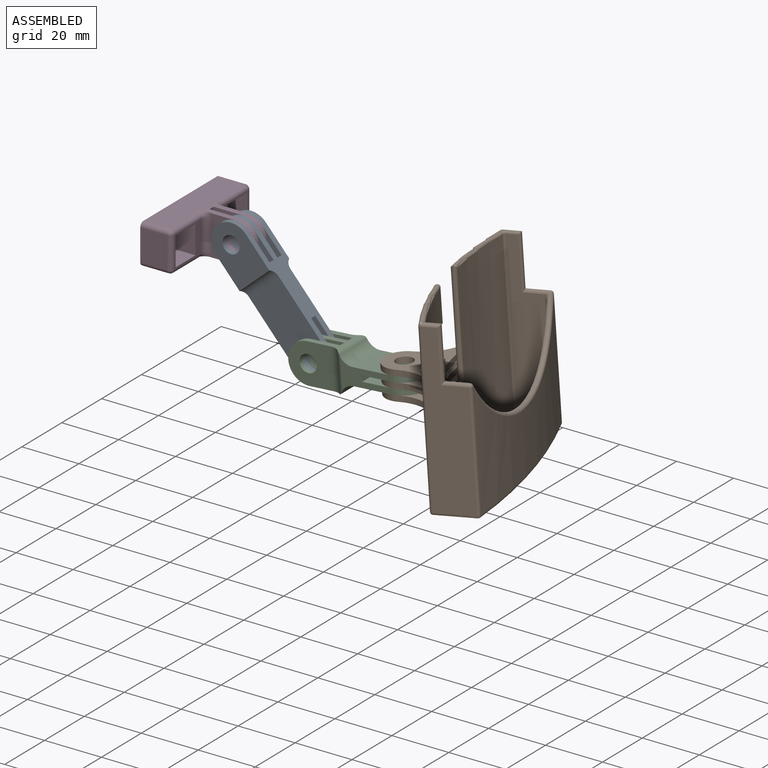
[diagram: assembled view]
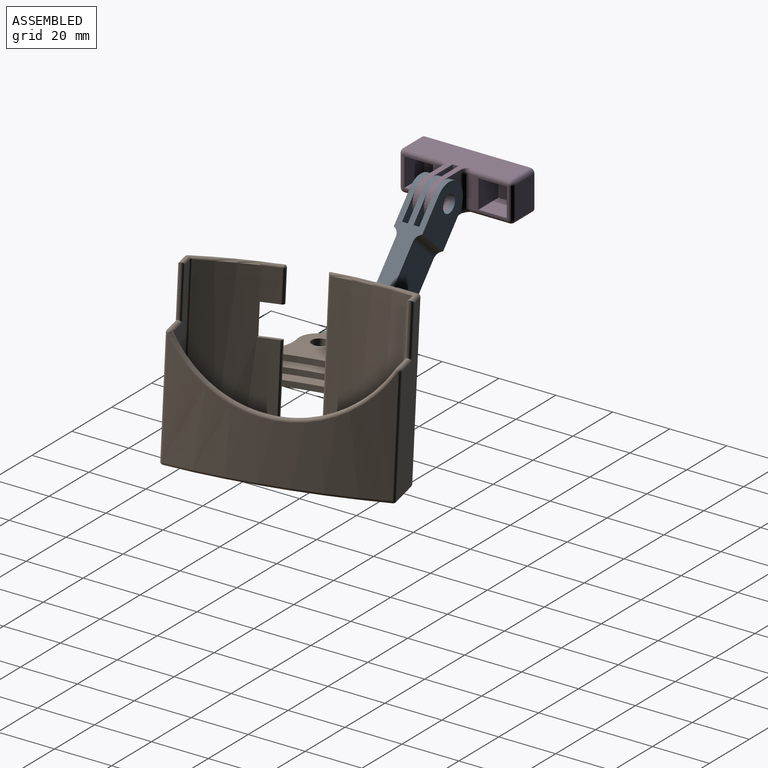
[diagram: assembled view, second angle]
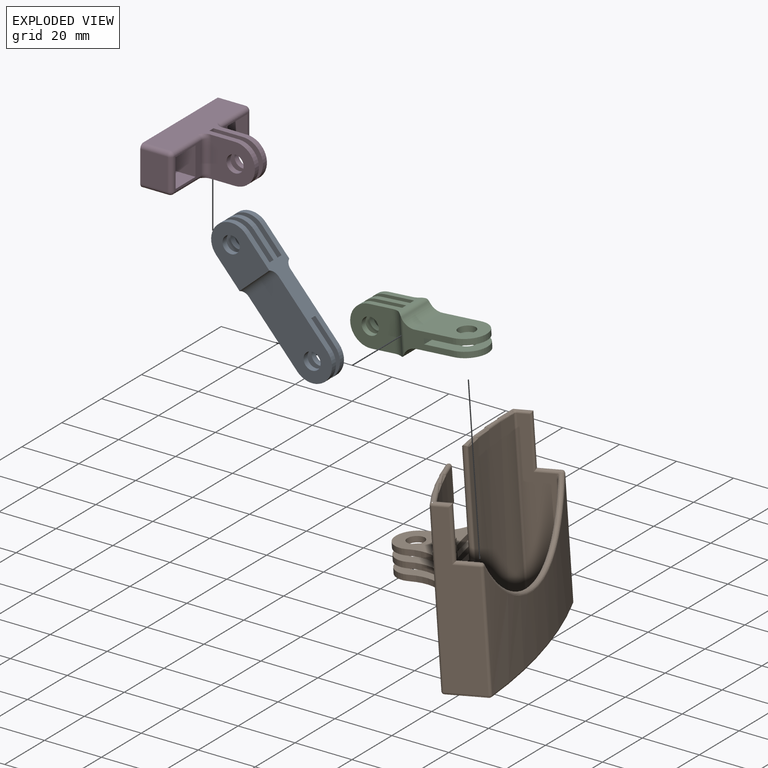
[diagram: exploded view]
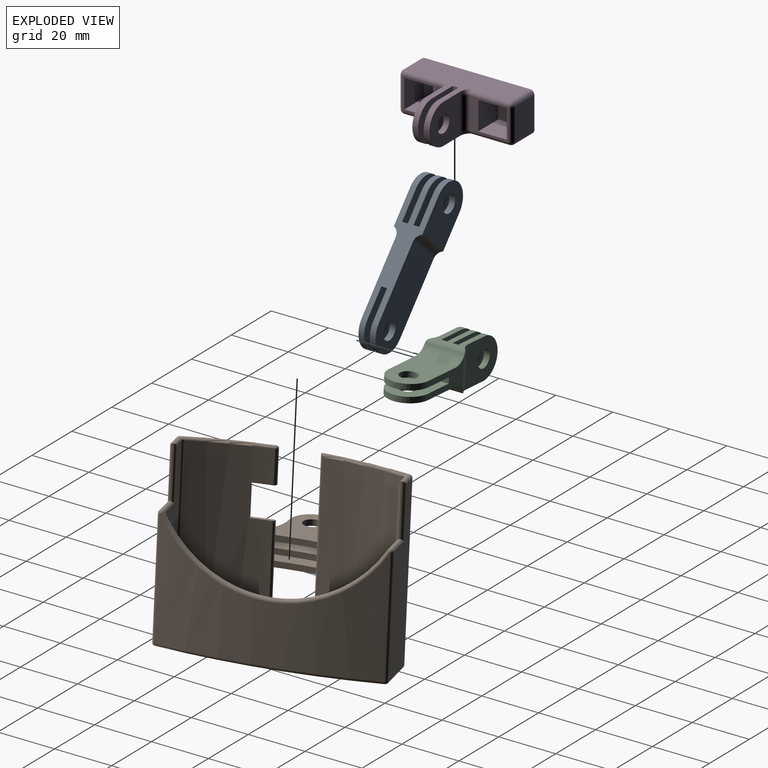
[diagram: exploded view, second angle]
ASSEMBLY  parts=4 mates=3
PART A: 27 faces, bbox 14x54.8x10 mm
  f0: plane 40.78x10mm, normal (-1,0,0), area 235mm2, adj f1,f4,f5,f6,f8,f9,f10,f11
  f1: cylinder r=7mm len=14mm, axis (0,0,-1), area 44mm2, adj f0,f2,f4,f5
  f2: plane 40.78x10mm, normal (1,0,0), area 235mm2, adj f1,f4,f5,f6,f8,f9,f10,f11
  f3: cylinder r=3mm len=6mm, axis (0,0,-1), area 37.7mm2, adj f4,f5
  f4: plane 17.39x14mm, normal (0,0,1), area 194.1mm2, adj f0,f1,f2,f3,f10
  f5: plane 32.56x14mm, normal (0,0,-1), area 406.6mm2, adj f0,f1,f2,f3,f26
  f6: cylinder r=7mm len=14mm, axis (0,0,-1), area 44mm2, adj f0,f2,f8,f9
  f7: cylinder r=3mm len=6mm, axis (0,0,-1), area 37.7mm2, adj f8,f9
  f8: plane 32.56x14mm, normal (0,0,1), area 406.6mm2, adj f0,f2,f6,f7,f25
  f9: plane 17.39x14mm, normal (0,0,-1), area 194.1mm2, adj f0,f2,f6,f7,f10
  f10: plane 14x2mm, normal (0,-1,0), area 28mm2, adj f0,f2,f4,f9
  f11: cylinder r=7mm len=14mm, axis (0,0,-1), area 44mm2, adj f0,f2,f13,f14
  f12: cylinder r=3mm len=6mm, axis (0,0,-1), area 37.7mm2, adj f13,f14
  f13: plane 17.39x14mm, normal (0,0,1), area 194.1mm2, adj f0,f2,f11,f12,f15
  f14: plane 17.39x14mm, normal (0,0,-1), area 194.1mm2, adj f0,f2,f11,f12,f24
  f15: plane 14x2mm, normal (0,1,0), area 28mm2, adj f0,f2,f13,f19
  f16: cylinder r=7mm len=14mm, axis (0,0,-1), area 44mm2, adj f0,f2,f18,f19
  f17: cylinder r=3mm len=6mm, axis (0,0,-1), area 37.7mm2, adj f18,f19
  f18: plane 19.39x14mm, normal (0,0,1), area 222.1mm2, adj f0,f2,f16,f17,f25
  f19: plane 17.39x14mm, normal (0,0,-1), area 194.1mm2, adj f0,f2,f15,f16,f17
  f20: cylinder r=7mm len=14mm, axis (0,0,-1), area 44mm2, adj f0,f2,f22,f23
  f21: cylinder r=3mm len=6mm, axis (0,0,-1), area 37.7mm2, adj f22,f23
  f22: plane 17.39x14mm, normal (0,0,1), area 194.1mm2, adj f0,f2,f20,f21,f24
  f23: plane 19.39x14mm, normal (0,0,-1), area 222.1mm2, adj f0,f2,f20,f21,f26
  f24: plane 14x2mm, normal (0,1,0), area 28mm2, adj f0,f2,f14,f22
  f25: cylinder r=3mm len=14mm, axis (1,0,0), area 51.7mm2, adj f0,f2,f8,f18
  f26: cylinder r=3mm len=14mm, axis (1,0,0), area 51.7mm2, adj f0,f2,f5,f23
PART B: 107 faces, bbox 76.4x47.2x60 mm
  f0: cylinder r=120.1mm len=70.59mm, axis (0,0,-1), area 3090.1mm2, adj f1,f3,f5,f79,f82,f83,f84,f87
  f1: cylinder r=14.77mm len=14.57mm, axis (0,0,-1), area 41.6mm2, adj f0,f2,f84,f88
  f2: cylinder r=7mm len=14mm, axis (0,0,-1), area 44mm2, adj f1,f84,f87,f88
  f3: cylinder r=14.77mm len=14.57mm, axis (0,0,-1), area 41.6mm2, adj f0,f4,f79,f83
  f4: cylinder r=7mm len=14mm, axis (0,0,-1), area 44mm2, adj f3,f79,f82,f83
  f5: bspline ~15.13x9.18mm, area 34.6mm2, adj f0,f6,f91,f102
  f6: cylinder r=6.5mm len=13mm, axis (0,1,0), area 5mm2, adj f5,f7,f77,f78
  f7: plane 26.51x0.24mm, normal (-1,0,0), area 6.2mm2, adj f6,f8,f76,f91
  f8: cylinder r=0.75mm len=26.51mm, axis (0,0,-1), area 30mm2, adj f7,f9,f76,f77
  f9: cylinder r=118.1mm len=66.93mm, axis (0,0,-1), area 2970.6mm2, adj f8,f10,f69,f70,f71,f72,f73,f74
  f10: torus R=117.35mm, axis (0,0,1), area 79.8mm2, adj f9,f11,f67,f68
  f11: sphere r=0.75mm, area 0.7mm2, adj f10,f12,f69
  f12: cylinder r=0.75mm len=10.81mm, axis (0,1,0), area 12.7mm2, adj f11,f13,f66,f68
  f13: sphere r=0.75mm, area 1.5mm2, adj f12,f14,f65
  f14: torus R=193.42mm, axis (0,0,1), area 78.9mm2, adj f13,f15,f64,f68
  f15: sphere r=0.75mm, area 0.8mm2, adj f14,f16,f63
  f16: cylinder r=0.75mm len=10.81mm, axis (0,-1,0), area 12.7mm2, adj f15,f17,f67,f68
  f17: plane 56.5x11.37mm, normal (-1,0,0), area 487.1mm2, adj f16,f18,f59,f61,f62,f63,f75
  f18: cylinder r=0.75mm len=18.81mm, axis (0,0,-1), area 21.2mm2, adj f17,f19,f57,f58,f59,f62
  f19: plane 17.91x0.25mm, normal (0,1,0), area 4.5mm2, adj f18,f20,f54,f58
  f20: cylinder r=1mm len=18.88mm, axis (0,0,1), area 28.1mm2, adj f19,f21,f52,f58
  f21: plane 58x13.58mm, normal (1,0,0), area 634mm2, adj f20,f22,f51,f52,f58,f98
  f22: cylinder r=1mm len=13.58mm, axis (0,1,0), area 21.3mm2, adj f21,f23,f48,f49,f50
  f23: sphere r=1mm, area 0.2mm2, adj f22,f24
  f24: torus R=195.17mm, axis (0,0,1), area 110.9mm2, adj f23,f25,f47,f48,f50
  f25: cylinder r=196.17mm len=70.36mm, axis (0,0,-1), area 1831.2mm2, adj f24,f26,f46,f51
  f26: bspline ~73.16x24.38mm, area 136.5mm2, adj f25,f27,f45,f57
  f27: sphere r=1mm, area 2.4mm2, adj f26,f28,f46
  f28: cylinder r=1mm len=8.59mm, axis (0,-1,0), area 20.5mm2, adj f27,f29,f40,f41,f42,f57
  f29: cylinder r=0.75mm len=18.81mm, axis (0,0,1), area 21.2mm2, adj f28,f30,f35,f40,f57,f66
  f30: cylinder r=0.75mm len=8.13mm, axis (0,-1,0), area 3mm2, adj f29,f31,f57,f66
  f31: bspline ~0.96x0.95mm, area 0.1mm2, adj f30,f32,f34
  f32: bspline ~72.03x23.64mm, area 91.8mm2, adj f31,f33,f34,f57,f61,f64
  f33: bspline ~0.96x0.95mm, area 0.1mm2, adj f32,f61,f62
  f34: bspline ~2.66x1.01mm, area 1.5mm2, adj f31,f32,f65,f66
  f35: cylinder r=0.75mm len=5.81mm, axis (0,1,0), area 5.7mm2, adj f29,f36,f37,f66
  f36: bspline ~1.29x1.12mm, area 0.5mm2, adj f35,f69,f70
  f37: plane 28.46x11.07mm, normal (0,0,1), area 8.7mm2, adj f35,f38,f40,f70,f78,f101,f102
  f38: cylinder r=1mm len=5.99mm, axis (0,1,0), area 8.6mm2, adj f37,f39,f41,f42
  f39: sphere r=1mm, area 1.3mm2, adj f38,f100,f101
  f40: plane 17.91x0.25mm, normal (0,1,0), area 4.5mm2, adj f28,f29,f37,f41
  f41: cylinder r=1mm len=18.88mm, axis (0,0,-1), area 28.1mm2, adj f28,f38,f40,f42
  f42: plane 58x13.58mm, normal (-1,0,0), area 634mm2, adj f28,f38,f41,f43,f46,f100
  f43: cylinder r=1mm len=13.58mm, axis (0,-1,0), area 21.3mm2, adj f42,f44,f47,f48
  f44: sphere r=1mm, area 0.7mm2, adj f43,f99,f100
  f45: sphere r=1mm, area 2.4mm2, adj f26,f51,f58
  f46: cylinder r=1mm len=40.12mm, axis (0,0,-1), area 55.8mm2, adj f25,f27,f42,f47
  f47: sphere r=1mm, area 1.5mm2, adj f24,f43,f46
  f48: plane 70x22mm, normal (0,0,-1), area 1344.8mm2, adj f22,f24,f43,f99
  f49: sphere r=1mm, area 1.3mm2, adj f22,f98,f99
  f50: sphere r=1mm, area 0.5mm2, adj f22,f24,f51
  f51: cylinder r=1mm len=40.12mm, axis (0,0,-1), area 55.8mm2, adj f21,f25,f45,f50
  f52: cylinder r=1mm len=5.99mm, axis (0,-1,0), area 8.6mm2, adj f20,f21,f53,f54
  f53: sphere r=1mm, area 0.7mm2, adj f52,f97,f98
  f54: plane 27.79x11.03mm, normal (0,0,1), area 8.5mm2, adj f19,f52,f55,f59,f74,f97
  f55: torus R=0.25mm, axis (0,0,1), area 1.3mm2, adj f54,f56,f74,f96
  f56: bspline ~1.24x1.07mm, area 0.9mm2, adj f55,f96,f97
  f57: cylinder r=39.5mm len=68.27mm, axis (0,-1,0), area 20.5mm2, adj f18,f26,f28,f29,f30,f32,f58,f62
  f58: cylinder r=1mm len=8.59mm, axis (0,-1,0), area 20.5mm2, adj f18,f19,f20,f21,f45,f57
  f59: cylinder r=0.75mm len=5.81mm, axis (0,-1,0), area 5.7mm2, adj f17,f18,f54,f60
  f60: bspline ~1.29x1.12mm, area 0.5mm2, adj f59,f74,f75
  f61: bspline ~2.66x1.01mm, area 1.5mm2, adj f17,f32,f33,f63
  f62: cylinder r=0.75mm len=8.13mm, axis (0,-1,0), area 3mm2, adj f17,f18,f33,f57
  f63: cylinder r=0.75mm len=36.45mm, axis (0,0,-1), area 38.2mm2, adj f15,f17,f61,f64
  f64: cylinder r=194.17mm len=66.76mm, axis (0,0,-1), area 1599.8mm2, adj f14,f32,f63,f65
  f65: cylinder r=0.75mm len=36.45mm, axis (0,0,-1), area 38.2mm2, adj f13,f34,f64,f66
  f66: plane 56.5x11.37mm, normal (1,0,0), area 487.1mm2, adj f12,f29,f30,f34,f35,f65,f69
  f67: sphere r=0.75mm, area 0.7mm2, adj f10,f16,f75
  f68: plane 66.5x18.5mm, normal (0,0,1), area 1060.9mm2, adj f10,f12,f14,f16
  f69: cylinder r=0.75mm len=56.5mm, axis (0,0,-1), area 54.4mm2, adj f9,f11,f36,f66
  f70: torus R=118.85mm, axis (0,0,1), area 32.5mm2, adj f9,f36,f37,f71,f78
  f71: cylinder r=0.75mm len=49.5mm, axis (0,0,-1), area 55.6mm2, adj f9,f70,f77,f78
  f72: plane 11x0.88mm, normal (-1,0,0), area 9.7mm2, adj f9,f73,f76,f94
  f73: plane 7.54x1.66mm, normal (0,0,-1), area 7.4mm2, adj f9,f72,f94,f95,f96
  f74: torus R=118.85mm, axis (0,0,1), area 32mm2, adj f9,f54,f55,f60
  f75: cylinder r=0.75mm len=56.5mm, axis (0,0,-1), area 54.4mm2, adj f9,f17,f60,f67
  f76: plane 7.54x1.66mm, normal (0,0,1), area 7.5mm2, adj f7,f8,f9,f72,f91,f93,f94
  f77: bspline ~14.41x8.88mm, area 24.6mm2, adj f6,f8,f9,f71
  f78: plane 49.51x0.24mm, normal (1,0,0), area 11.6mm2, adj f6,f37,f70,f71,f102
  f79: plane 38.77x21.57mm, normal (0,0,-1), area 300.5mm2, adj f0,f3,f4,f80,f81,f82
  f80: cylinder r=3mm len=6mm, axis (0,0,-1), area 37.7mm2, adj f79,f83
  f81: cylinder r=120.1mm len=15.13mm, axis (0,0,-1), area 30.3mm2, adj f79,f83,f91,f102
  f82: cylinder r=14.77mm len=14.57mm, axis (0,0,-1), area 41.6mm2, adj f0,f4,f79,f83
  f83: plane 38.77x21.57mm, normal (0,0,1), area 300.5mm2, adj f0,f3,f4,f80,f81,f82
  f84: plane 38.77x21.57mm, normal (0,0,-1), area 300.5mm2, adj f0,f1,f2,f85,f86,f87
  f85: cylinder r=3mm len=6mm, axis (0,0,-1), area 37.7mm2, adj f84,f88
  f86: cylinder r=120.1mm len=15.13mm, axis (0,0,-1), area 30.3mm2, adj f84,f88,f91,f102
  f87: cylinder r=14.77mm len=14.57mm, axis (0,0,-1), area 41.6mm2, adj f0,f2,f84,f88
  f88: plane 38.77x21.57mm, normal (0,0,1), area 300.5mm2, adj f0,f1,f2,f85,f86,f87
  f89: cylinder r=14.77mm len=14.57mm, axis (0,0,-1), area 41.6mm2, adj f0,f90,f103,f106
  f90: cylinder r=7mm len=14mm, axis (0,0,-1), area 44mm2, adj f89,f103,f105,f106
  f91: cylinder r=1mm len=26.51mm, axis (0,0,-1), area 42.7mm2, adj f0,f5,f7,f76,f81,f86,f92,f93
  f92: cylinder r=120.1mm len=15.13mm, axis (0,0,-1), area 30.3mm2, adj f91,f102,f103,f106
  f93: torus R=119.1mm, axis (0,0,-1), area 12mm2, adj f0,f76,f91,f94
  f94: cylinder r=1mm len=13mm, axis (0,0,-1), area 19.8mm2, adj f0,f72,f73,f76,f93,f95
  f95: torus R=119.1mm, axis (0,0,-1), area 12mm2, adj f0,f73,f94,f96
  f96: cylinder r=1mm len=11.25mm, axis (0,0,-1), area 34.4mm2, adj f0,f9,f55,f56,f73,f95
  f97: torus R=119.1mm, axis (0,0,1), area 44.5mm2, adj f0,f53,f54,f56
  f98: cylinder r=1mm len=58mm, axis (0,0,-1), area 73.8mm2, adj f0,f21,f49,f53
  f99: torus R=119.1mm, axis (0,0,1), area 112.2mm2, adj f0,f44,f48,f49
  f100: cylinder r=1mm len=58mm, axis (0,0,-1), area 73.8mm2, adj f0,f39,f42,f44
  f101: torus R=119.1mm, axis (0,0,1), area 45mm2, adj f0,f37,f39,f102
  f102: cylinder r=1mm len=49.51mm, axis (0,0,-1), area 80.3mm2, adj f0,f5,f37,f78,f81,f86,f92,f101
  f103: plane 38.77x21.57mm, normal (0,0,1), area 300.5mm2, adj f0,f89,f90,f92,f104,f105
  f104: cylinder r=3mm len=6mm, axis (0,0,-1), area 37.7mm2, adj f103,f106
  f105: cylinder r=14.77mm len=14.57mm, axis (0,0,-1), area 41.6mm2, adj f0,f90,f103,f106
  f106: plane 38.77x21.57mm, normal (0,0,-1), area 300.5mm2, adj f0,f89,f90,f92,f104,f105
PART C: 35 faces, bbox 14x44.8x14 mm
  f0: plane 17.49x10mm, normal (-1,0,0), area 89mm2, adj f1,f4,f5,f6,f8,f9,f10,f27
  f1: cylinder r=7mm len=14mm, axis (0,0,-1), area 44mm2, adj f0,f2,f4,f5
  f2: plane 17.49x10mm, normal (1,0,0), area 89mm2, adj f1,f4,f5,f6,f8,f9,f10,f27
  f3: cylinder r=3mm len=6mm, axis (0,0,-1), area 37.7mm2, adj f4,f5
  f4: plane 17.39x14mm, normal (0,0,1), area 194.1mm2, adj f0,f1,f2,f3,f10
  f5: plane 20.49x14mm, normal (0,0,-1), area 237.6mm2, adj f0,f1,f2,f3,f30
  f6: cylinder r=7mm len=14mm, axis (0,0,-1), area 44mm2, adj f0,f2,f8,f9
  f7: cylinder r=3mm len=6mm, axis (0,0,-1), area 37.7mm2, adj f8,f9
  f8: plane 20.49x14mm, normal (0,0,1), area 237.6mm2, adj f0,f2,f6,f7,f27
  f9: plane 17.39x14mm, normal (0,0,-1), area 194.1mm2, adj f0,f2,f6,f7,f10
  f10: plane 14x2mm, normal (0,-1,0), area 28mm2, adj f0,f2,f4,f9
  f11: plane 11.43x10.96mm, normal (0,0,-1), area 69.3mm2, adj f12,f15,f16,f17,f18,f20,f21,f22
  f12: cylinder r=7mm len=14mm, axis (-1,0,0), area 44mm2, adj f11,f13,f15,f16
  f13: plane 11.43x10.96mm, normal (0,0,1), area 69.3mm2, adj f12,f15,f16,f17,f18,f20,f21,f22
  f14: cylinder r=3mm len=6mm, axis (-1,0,0), area 37.7mm2, adj f15,f16
  f15: plane 17.39x14mm, normal (1,0,0), area 194.1mm2, adj f11,f12,f13,f14,f17
  f16: plane 17.39x14mm, normal (-1,0,0), area 194.1mm2, adj f11,f12,f13,f14,f26
  f17: plane 14x2mm, normal (0,1,0), area 28mm2, adj f11,f13,f15,f21
  f18: cylinder r=7mm len=14mm, axis (-1,0,0), area 44mm2, adj f11,f13,f20,f21
  f19: cylinder r=3mm len=6mm, axis (-1,0,0), area 37.7mm2, adj f20,f21
  f20: plane 15.39x14mm, normal (1,0,0), area 166.1mm2, adj f11,f13,f18,f19,f29
  f21: plane 17.39x14mm, normal (-1,0,0), area 194.1mm2, adj f11,f13,f17,f18,f19
  f22: cylinder r=7mm len=14mm, axis (-1,0,0), area 44mm2, adj f11,f13,f24,f25
  f23: cylinder r=3mm len=6mm, axis (-1,0,0), area 37.7mm2, adj f24,f25
  f24: plane 17.39x14mm, normal (1,0,0), area 194.1mm2, adj f11,f13,f22,f23,f26
  f25: plane 15.39x14mm, normal (-1,0,0), area 166.1mm2, adj f11,f13,f22,f23,f28
  f26: plane 14x2mm, normal (0,1,0), area 28mm2, adj f11,f13,f16,f24
  f27: cylinder r=5mm len=14mm, axis (1,0,0), area 78.9mm2, adj f0,f2,f8,f31,f32,f33
  f28: cylinder r=5mm len=14mm, axis (0,0,1), area 54.1mm2, adj f11,f13,f25,f31,f32,f34
  f29: cylinder r=5mm len=14mm, axis (0,0,1), area 54.1mm2, adj f11,f13,f20,f31,f33,f34
  f30: cylinder r=5mm len=14mm, axis (-1,0,0), area 78.9mm2, adj f0,f2,f5,f32,f33,f34
  f31: cylinder r=2mm len=13.86mm, axis (1,0,0), area 29.2mm2, adj f13,f27,f28,f29,f32,f33
  f32: cylinder r=2mm len=13.55mm, axis (0,0,1), area 18.9mm2, adj f0,f27,f28,f30,f31,f34
  f33: cylinder r=2mm len=13.55mm, axis (0,0,1), area 18.9mm2, adj f2,f27,f29,f30,f31,f34
  f34: cylinder r=2mm len=13.86mm, axis (-1,0,0), area 29.2mm2, adj f11,f28,f29,f30,f32,f33
PART D: 48 faces, bbox 40x28.4x21.7 mm
  f0: plane 13.5x11mm, normal (0,-1,0), area 48.5mm2, adj f23,f24,f25,f26,f28,f31,f34,f46
  f1: cylinder r=1.5mm len=3mm, axis (0,-1,0), area 9.4mm2, adj f17,f27
  f2: cylinder r=1.5mm len=3mm, axis (0,-1,0), area 9.4mm2, adj f17,f22
  f3: plane 13.5x11mm, normal (0,-1,0), area 48.5mm2, adj f18,f19,f20,f21,f35,f38,f39,f43
  f4: plane 37x21.39mm, normal (0,0,1), area 406.3mm2, adj f5,f8,f9,f10,f12,f13,f14,f17
  f5: cylinder r=7mm len=14mm, axis (-1,0,0), area 44mm2, adj f4,f6,f8,f9
  f6: plane 37x21.39mm, normal (0,0,-1), area 406.3mm2, adj f5,f8,f9,f10,f12,f13,f14,f17
  f7: cylinder r=3mm len=6mm, axis (-1,0,0), area 37.7mm2, adj f8,f9
  f8: plane 17.39x14mm, normal (1,0,0), area 194.1mm2, adj f4,f5,f6,f7,f14
  f9: plane 15.73x14mm, normal (-1,0,0), area 166.5mm2, adj f4,f5,f6,f7,f45,f46,f47
  f10: cylinder r=7mm len=14mm, axis (-1,0,0), area 44mm2, adj f4,f6,f12,f13
  f11: cylinder r=3mm len=6mm, axis (-1,0,0), area 37.7mm2, adj f12,f13
  f12: plane 15.73x14mm, normal (1,0,0), area 166.5mm2, adj f4,f6,f10,f11,f42,f43,f44
  f13: plane 17.39x14mm, normal (-1,0,0), area 194.1mm2, adj f4,f6,f10,f11,f14
  f14: plane 14x2mm, normal (0,-1,0), area 28mm2, adj f4,f6,f8,f13
  f15: plane 11x9.5mm, normal (-1,0,0), area 104.5mm2, adj f17,f29,f31,f32
  f16: plane 11x9.5mm, normal (1,0,0), area 104.5mm2, adj f17,f36,f39,f41
  f17: plane 40x14mm, normal (0,1,0), area 543.9mm2, adj f1,f2,f4,f6,f15,f16,f29,f32
  f18: plane 10x10mm, normal (-1,0,0), area 100mm2, adj f3,f19,f21,f22
  f19: plane 10x10mm, normal (0,0,-1), area 100mm2, adj f3,f18,f20,f22
  f20: plane 10x10mm, normal (1,0,0), area 100mm2, adj f3,f19,f21,f22
  f21: plane 10x10mm, normal (0,0,1), area 100mm2, adj f3,f18,f20,f22
  f22: plane 10x10mm, normal (0,-1,0), area 92.9mm2, adj f2,f18,f19,f20,f21
  f23: plane 10x10mm, normal (1,0,0), area 100mm2, adj f0,f24,f26,f27
  f24: plane 10x10mm, normal (0,0,1), area 100mm2, adj f0,f23,f25,f27
  f25: plane 10x10mm, normal (-1,0,0), area 100mm2, adj f0,f24,f26,f27
  f26: plane 10x10mm, normal (0,0,-1), area 100mm2, adj f0,f23,f25,f27
  f27: plane 10x10mm, normal (0,-1,0), area 92.9mm2, adj f1,f23,f24,f25,f26
  f28: cylinder r=1.5mm len=13.5mm, axis (1,0,0), area 31.8mm2, adj f0,f6,f30,f45
  f29: cylinder r=1.5mm len=9.5mm, axis (0,1,0), area 22.4mm2, adj f6,f15,f17,f30
  f30: sphere r=1.5mm, area 3.5mm2, adj f28,f29,f31
  f31: cylinder r=1.5mm len=11mm, axis (0,0,-1), area 25.9mm2, adj f0,f15,f30,f33
  f32: cylinder r=1.5mm len=9.5mm, axis (0,-1,0), area 22.4mm2, adj f4,f15,f17,f33
  f33: sphere r=1.5mm, area 3.5mm2, adj f31,f32,f34
  f34: cylinder r=1.5mm len=13.5mm, axis (-1,0,0), area 31.8mm2, adj f0,f4,f33,f47
  f35: cylinder r=1.5mm len=13.5mm, axis (-1,0,0), area 31.8mm2, adj f3,f4,f37,f44
  f36: cylinder r=1.5mm len=9.5mm, axis (0,-1,0), area 22.4mm2, adj f4,f16,f17,f37
  f37: sphere r=1.5mm, area 3.5mm2, adj f35,f36,f39
  f38: cylinder r=1.5mm len=13.5mm, axis (1,0,0), area 31.8mm2, adj f3,f6,f40,f42
  f39: cylinder r=1.5mm len=11mm, axis (0,0,1), area 25.9mm2, adj f3,f16,f37,f40
  f40: sphere r=1.5mm, area 3.5mm2, adj f38,f39,f41
  f41: cylinder r=1.5mm len=9.5mm, axis (0,1,0), area 22.4mm2, adj f6,f16,f17,f40
  f42: torus R=3.5mm, axis (1,0,0), area 5.5mm2, adj f6,f12,f38,f43
  f43: cylinder r=2mm len=11mm, axis (0,0,1), area 34.6mm2, adj f3,f12,f42,f44
  f44: torus R=3.5mm, axis (1,0,0), area 5.5mm2, adj f4,f12,f35,f43
  f45: torus R=3.5mm, axis (1,0,0), area 5.5mm2, adj f6,f9,f28,f46
  f46: cylinder r=2mm len=11mm, axis (0,0,-1), area 34.6mm2, adj f0,f9,f45,f47
  f47: torus R=3.5mm, axis (1,0,0), area 5.5mm2, adj f4,f9,f34,f46
PLACE A rot(axis=(0.88,-0.33,0.33),97.2deg) t=(-32.34,-24,55)mm
PLACE B rot(axis=(0.04,-0.05,-1),74.4deg) t=(33.72,-18.96,24.28)mm
PLACE C rot(axis=(-0.04,-0.04,1),90.1deg) t=(-5.84,-26,44.54)mm
PLACE D rot(axis=(0,0,1),90deg) t=(-61.17,-26,75.78)mm fixed
MATE revolute C.f3 <-> B.f2  axis (-0.07,0,1) through (6.78,-26,50.44)mm
MATE revolute A.f3 <-> C.f12  axis (0,-1,0) through (-23.71,-29,45.28)mm
MATE revolute D.f5 <-> A.f11  axis (0,1,0) through (-50.78,-23,75.78)mm
